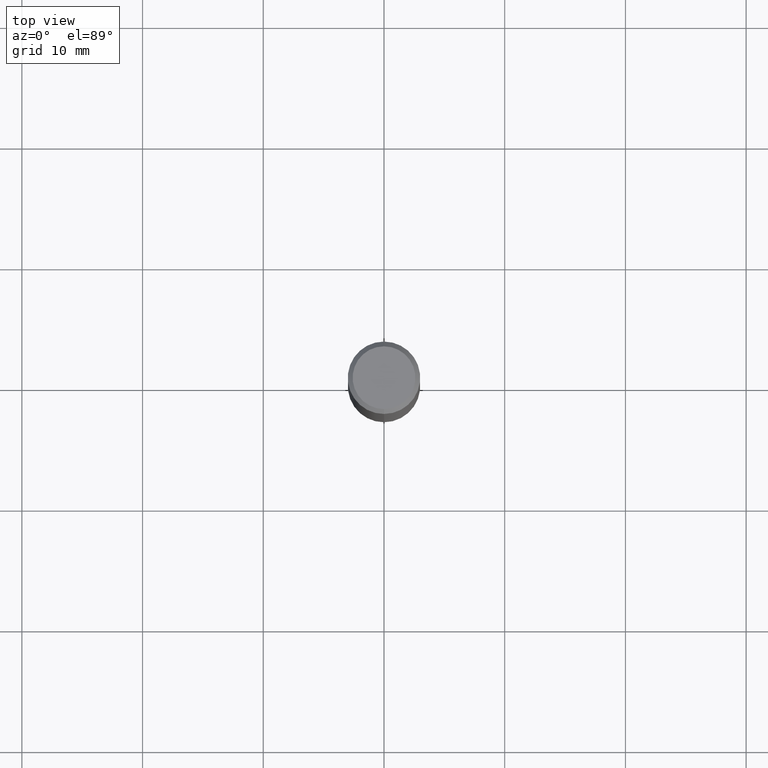
[diagram: clean part render]
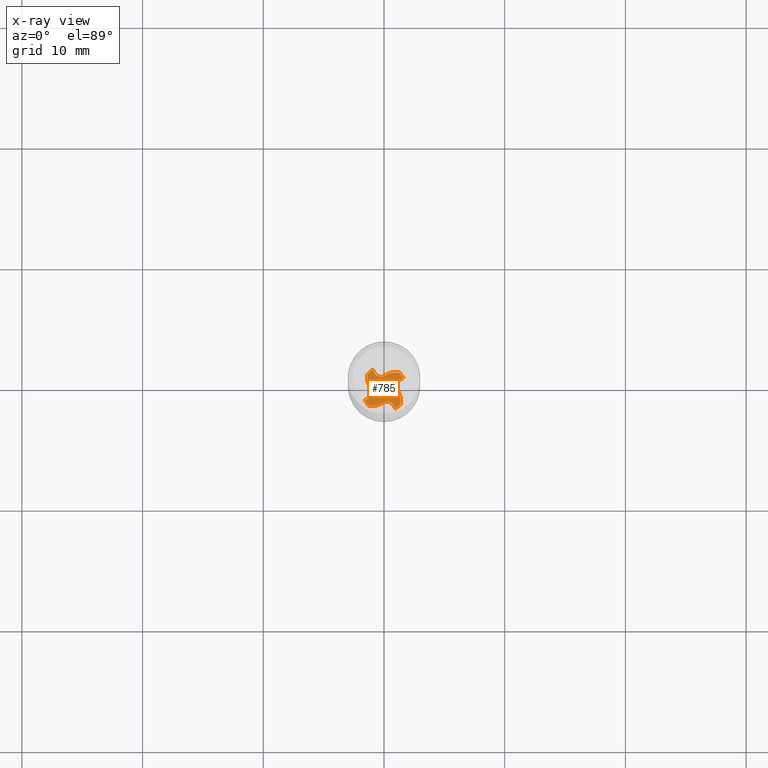
[diagram: x-ray — body ghosted, one internal face saturated and labeled with its STEP entity id]
A machine part, top view, then the same camera in x-ray: the body is ghosted and one INTERNAL B-rep face — a face not visible from any outside direction — is saturated and labeled: STEP entity #785.
In plain terms, the highlighted planar face has unit normal (0, 0, -1).
Its self-contained STEP definition (entity closure, byte-faithful):
#539=EDGE_CURVE('',#675,#1155,#1521,.T.);
#581=VERTEX_POINT('',#1569);
#585=VERTEX_POINT('',#1573);
#641=EDGE_CURVE('',#743,#1293,#1633,.T.);
#655=EDGE_CURVE('',#1155,#581,#1648,.T.);
#675=VERTEX_POINT('',#1669);
#717=VERTEX_POINT('',#1715);
#727=EDGE_CURVE('',#585,#1095,#1727,.T.);
#743=VERTEX_POINT('',#1745);
#765=VERTEX_POINT('',#1771);
#785=ADVANCED_FACE('',(#1792),#1793,.T.);
#805=EDGE_CURVE('',#1293,#1359,#1814,.T.);
#931=EDGE_CURVE('',#937,#675,#1951,.T.);
#937=VERTEX_POINT('',#1957);
#973=EDGE_CURVE('',#1113,#1429,#1997,.T.);
#991=EDGE_CURVE('',#1095,#1059,#2017,.T.);
#1029=EDGE_CURVE('',#1169,#937,#2059,.T.);
#1059=VERTEX_POINT('',#2094);
#1075=EDGE_CURVE('',#1059,#1393,#2113,.T.);
#1095=VERTEX_POINT('',#2135);
#1113=VERTEX_POINT('',#2153);
#1151=EDGE_CURVE('',#765,#1169,#2193,.T.);
#1155=VERTEX_POINT('',#2197);
#1169=VERTEX_POINT('',#2212);
#1191=EDGE_CURVE('',#1429,#765,#2234,.T.);
#1219=EDGE_CURVE('',#1359,#717,#2263,.T.);
#1239=EDGE_CURVE('',#1393,#743,#2285,.T.);
#1293=VERTEX_POINT('',#2348);
#1329=EDGE_CURVE('',#717,#1113,#2388,.T.);
#1359=VERTEX_POINT('',#2420);
#1393=VERTEX_POINT('',#2456);
#1429=VERTEX_POINT('',#2495);
#1437=EDGE_CURVE('',#581,#585,#2504,.T.);
#1521=LINE('',#2651,#2652);
#1569=CARTESIAN_POINT('',(-1.09300804060325,0.0292988566563537,-55.0));
#1573=CARTESIAN_POINT('',(-1.3587969829833,1.25538271516517,-55.0));
#1633=CIRCLE('',#3361,1.84995);
#1648=CIRCLE('',#3407,0.575);
#1669=CARTESIAN_POINT('',(-1.59899234686757,-0.930343203962361,-55.0));
#1715=CARTESIAN_POINT('',(1.09300804060326,-0.0292988566563395,-55.0));
#1727=CIRCLE('',#3819,1.84995);
#1745=CARTESIAN_POINT('',(1.25538271516516,1.35879698298331,-55.0));
#1771=CARTESIAN_POINT('',(0.756867224499615,-1.30083703993902,-55.0));
#1792=FACE_OUTER_BOUND('',#4193,.T.);
#1793=PLANE('',#4194);
#1814=LINE('',#4245,#4246);
#1951=CIRCLE('',#5192,1.84995);
#1957=CARTESIAN_POINT('',(-1.25538271516516,-1.35879698298331,-55.0));
#1997=CIRCLE('',#5443,1.84995);
#2017=LINE('',#5499,#5500);
#2059=CIRCLE('',#5635,1.5912);
#2094=CARTESIAN_POINT('',(-0.756867224499629,1.30083703993903,-55.0));
#2113=CIRCLE('',#5928,0.575);
#2135=CARTESIAN_POINT('',(-0.930343203962369,1.59899234686756,-55.0));
#2153=CARTESIAN_POINT('',(1.3587969829833,-1.25538271516517,-55.0));
#2193=CIRCLE('',#6115,0.575);
#2197=CARTESIAN_POINT('',(-1.30083703993902,-0.756867224499615,-55.0));
#2212=CARTESIAN_POINT('',(-0.0292988566563537,-1.09300804060325,-55.0));
#2234=LINE('',#6451,#6452);
#2263=CIRCLE('',#6669,0.575);
#2285=CIRCLE('',#6755,1.5912);
#2348=CARTESIAN_POINT('',(1.59899234686756,0.930343203962369,-55.0));
#2388=CIRCLE('',#7077,1.5912);
#2420=CARTESIAN_POINT('',(1.30083703993903,0.756867224499629,-55.0));
#2456=CARTESIAN_POINT('',(0.0292988566563395,1.09300804060326,-55.0));
#2495=CARTESIAN_POINT('',(0.930343203962361,-1.59899234686757,-55.0));
#2504=CIRCLE('',#7754,1.5912);
#2651=CARTESIAN_POINT('',(-1.30083703993902,-0.756867224499615,-55.0));
#2652=VECTOR('',#7943,0.999999999999999);
#3361=AXIS2_PLACEMENT_3D('',#8033,#8034,#8035);
#3407=AXIS2_PLACEMENT_3D('',#8052,#8053,#8054);
#3819=AXIS2_PLACEMENT_3D('',#8138,#8139,#8140);
#4193=EDGE_LOOP('',(#8222,#8223,#8224,#8225,#8226,#8227,#8228,#8229,#8230,#8231,#8232,#8233,#8234,#8235,#8236,#8237));
#4194=AXIS2_PLACEMENT_3D('',#8238,#8239,#8240);
#4245=CARTESIAN_POINT('',(1.30083703993903,0.756867224499629,-55.0));
#4246=VECTOR('',#8253,0.999999999999999);
#5192=AXIS2_PLACEMENT_3D('',#8377,#8378,#8379);
#5443=AXIS2_PLACEMENT_3D('',#8421,#8422,#8423);
#5499=CARTESIAN_POINT('',(-0.756867224499629,1.30083703993903,-55.0));
#5500=VECTOR('',#8451,0.999999999999999);
#5635=AXIS2_PLACEMENT_3D('',#8515,#8516,#8517);
#5928=AXIS2_PLACEMENT_3D('',#8592,#8593,#8594);
#6115=AXIS2_PLACEMENT_3D('',#8649,#8650,#8651);
#6451=CARTESIAN_POINT('',(0.756867224499615,-1.30083703993902,-55.0));
#6452=VECTOR('',#8668,0.999999999999999);
#6669=AXIS2_PLACEMENT_3D('',#8683,#8684,#8685);
#6755=AXIS2_PLACEMENT_3D('',#8707,#8708,#8709);
#7077=AXIS2_PLACEMENT_3D('',#8859,#8860,#8861);
#7754=AXIS2_PLACEMENT_3D('',#8962,#8963,#8964);
#7943=DIRECTION('',(0.864343548132417,0.502901810298854,4.6074255521944E-015));
#8033=CARTESIAN_POINT('',(0.0,0.0,-55.0));
#8034=DIRECTION('',(0.0,0.0,-1.0));
#8035=DIRECTION('',(0.0,1.0,0.0));
#8052=CARTESIAN_POINT('',(-1.59000558099758,-0.259869684287338,-55.0));
#8053=DIRECTION('',(-3.88578058618805E-015,-2.47024622979097E-015,1.0));
#8054=DIRECTION('',(0.864343548219878,0.502901810148533,4.60094067994416E-015));
#8138=CARTESIAN_POINT('',(0.0,0.0,-55.0));
#8139=DIRECTION('',(0.0,0.0,-1.0));
#8140=DIRECTION('',(0.0,1.0,0.0));
#8222=ORIENTED_EDGE('',*,*,#1191,.T.);
#8223=ORIENTED_EDGE('',*,*,#1151,.T.);
#8224=ORIENTED_EDGE('',*,*,#1029,.T.);
#8225=ORIENTED_EDGE('',*,*,#931,.T.);
#8226=ORIENTED_EDGE('',*,*,#539,.T.);
#8227=ORIENTED_EDGE('',*,*,#655,.T.);
#8228=ORIENTED_EDGE('',*,*,#1437,.T.);
#8229=ORIENTED_EDGE('',*,*,#727,.T.);
#8230=ORIENTED_EDGE('',*,*,#991,.T.);
#8231=ORIENTED_EDGE('',*,*,#1075,.T.);
#8232=ORIENTED_EDGE('',*,*,#1239,.T.);
#8233=ORIENTED_EDGE('',*,*,#641,.T.);
#8234=ORIENTED_EDGE('',*,*,#805,.T.);
#8235=ORIENTED_EDGE('',*,*,#1219,.T.);
#8236=ORIENTED_EDGE('',*,*,#1329,.T.);
#8237=ORIENTED_EDGE('',*,*,#973,.T.);
#8238=CARTESIAN_POINT('',(0.0,0.924975,-55.0));
#8239=DIRECTION('',(0.0,0.0,-1.0));
#8240=DIRECTION('',(0.0,1.0,0.0));
#8253=DIRECTION('',(-0.864343548132417,-0.502901810298854,4.6074255521944E-015));
#8377=CARTESIAN_POINT('',(0.0,0.0,-55.0));
#8378=DIRECTION('',(0.0,0.0,-1.0));
#8379=DIRECTION('',(0.0,1.0,0.0));
#8421=CARTESIAN_POINT('',(0.0,0.0,-55.0));
#8422=DIRECTION('',(0.0,0.0,-1.0));
#8423=DIRECTION('',(0.0,1.0,0.0));
#8451=DIRECTION('',(0.502901810298854,-0.864343548132417,4.6074255521944E-015));
#8515=CARTESIAN_POINT('',(-0.952149034281405,0.203242317027325,-55.0));
#8516=DIRECTION('',(-2.47024622979097E-015,3.88578058618805E-015,-1.0));
#8517=DIRECTION('',(0.57997120263013,-0.814636976892015,-4.59817222628233E-015));
#8592=CARTESIAN_POINT('',(-0.259869684287352,1.59000558099759,-55.0));
#8593=DIRECTION('',(-2.47024622979097E-015,3.88578058618805E-015,1.0));
#8594=DIRECTION('',(0.502901810148533,-0.864343548219878,4.60094067994416E-015));
#8649=CARTESIAN_POINT('',(0.259869684287338,-1.59000558099758,-55.0));
#8650=DIRECTION('',(2.47024622979097E-015,-3.88578058618805E-015,1.0));
#8651=DIRECTION('',(-0.502901810148533,0.864343548219878,4.60094067994416E-015));
#8668=DIRECTION('',(-0.502901810298854,0.864343548132417,4.6074255521944E-015));
#8683=CARTESIAN_POINT('',(1.59000558099759,0.259869684287352,-55.0));
#8684=DIRECTION('',(3.88578058618805E-015,2.47024622979097E-015,1.0));
#8685=DIRECTION('',(-0.864343548219878,-0.502901810148533,4.60094067994416E-015));
#8707=CARTESIAN_POINT('',(0.952149034281391,-0.203242317027318,-55.0));
#8708=DIRECTION('',(2.47024622979097E-015,-3.88578058618805E-015,-1.0));
#8709=DIRECTION('',(-0.57997120263013,0.814636976892015,-4.59817222628233E-015));
#8859=CARTESIAN_POINT('',(-0.203242317027318,-0.952149034281391,-55.0));
#8860=DIRECTION('',(-3.88578058618805E-015,-2.47024622979097E-015,-1.0));
#8861=DIRECTION('',(0.814636976892015,0.57997120263013,-4.59817222628233E-015));
#8962=CARTESIAN_POINT('',(0.203242317027325,0.952149034281405,-55.0));
#8963=DIRECTION('',(3.88578058618805E-015,2.47024622979097E-015,-1.0));
#8964=DIRECTION('',(-0.814636976892015,-0.57997120263013,-4.59817222628233E-015));